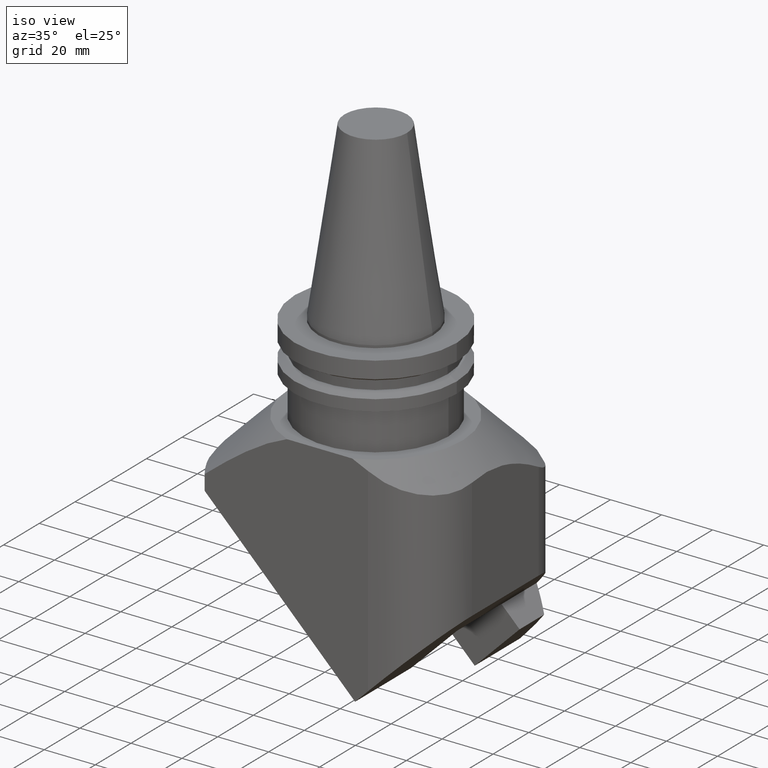
[diagram: clean part render]
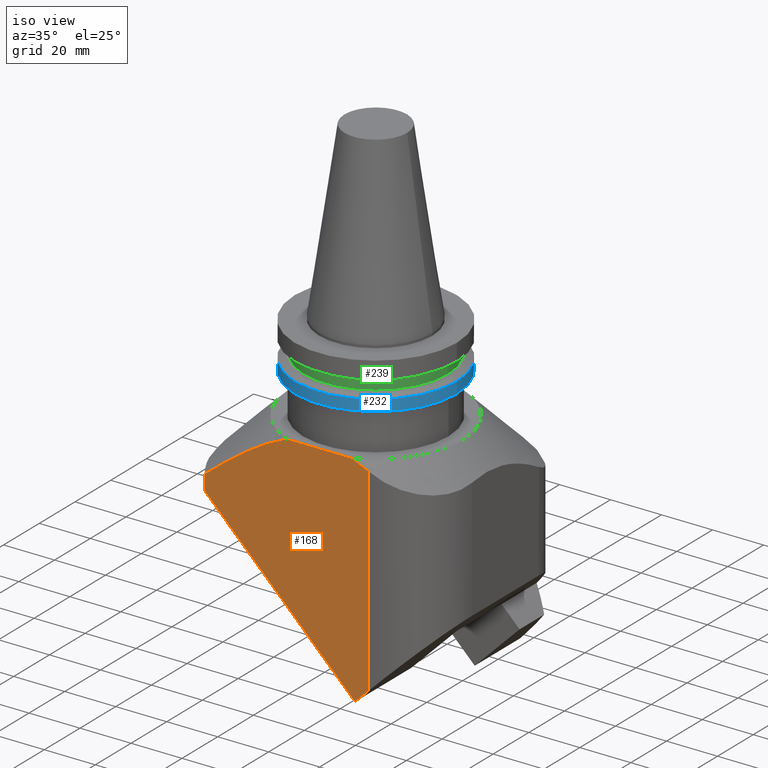
[diagram: same view with three faces highlighted in distinct colors, each labeled with its STEP entity id]
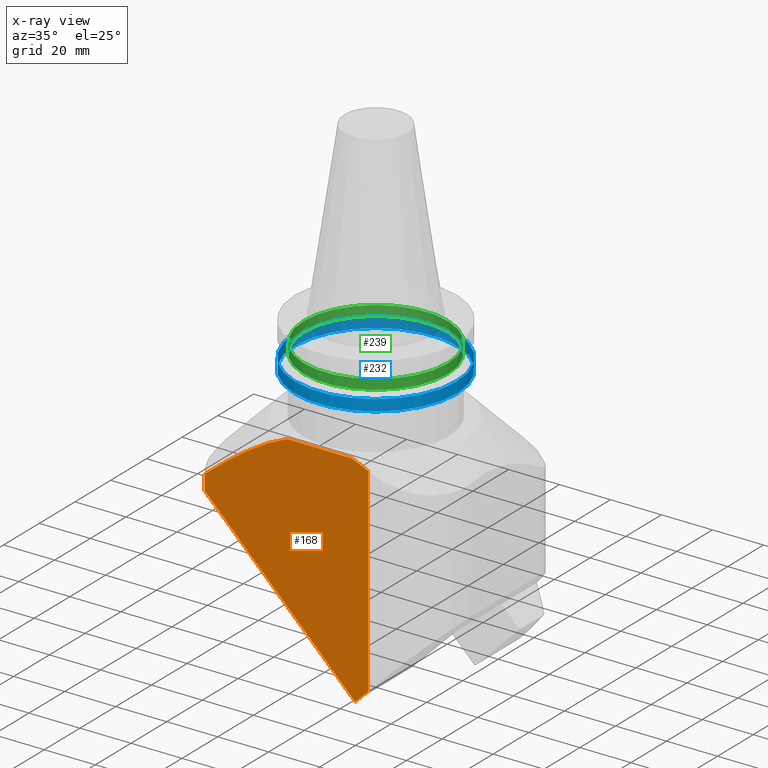
[diagram: x-ray of the same camera — body ghosted, the three highlighted faces saturated]
A machine part, iso view with three faces highlighted in distinct colors.
The next image is the same camera in x-ray (body ghosted, the three faces saturated) — at least one of them is partly hidden behind the body in this view.
Their STEP definitions:

[orange] entity #168 — the highlighted planar face has unit normal (0, 1, -0).
#160=EDGE_CURVE('Unnamed[1]',#409,#362,#410,.T.);
#162=EDGE_CURVE('Unnamed[1]',#412,#413,#414,.T.);
#168=ADVANCED_FACE('Unnamed[1]',(#421),#422,.F.);
#175=EDGE_CURVE('Unnamed[1]',#398,#413,#431,.T.);
#185=EDGE_CURVE('Unnamed[1]',#444,#412,#445,.T.);
#187=EDGE_CURVE('Unnamed[1]',#409,#447,#448,.T.);
#219=EDGE_CURVE('Unnamed[1]',#362,#444,#490,.T.);
#234=EDGE_CURVE('Unnamed[1]',#447,#398,#509,.T.);
#362=VERTEX_POINT('',#666);
#398=VERTEX_POINT('',#711);
#409=VERTEX_POINT('',#727);
#410=LINE('',#728,#729);
#412=VERTEX_POINT('',#732);
#413=VERTEX_POINT('',#733);
#414=(B_SPLINE_CURVE(2,(#735,#736,#737),.UNSPECIFIED.,.F.,.F.)B_SPLINE_CURVE_WITH_KNOTS((3,3),(0.0,38.6326090331154),.UNSPECIFIED.)RATIONAL_B_SPLINE_CURVE((1.0,1.07311621530074,1.0))BOUNDED_CURVE()REPRESENTATION_ITEM('')GEOMETRIC_REPRESENTATION_ITEM()CURVE());
#421=FACE_OUTER_BOUND('',#752,.T.);
#422=PLANE('',#753);
#431=LINE('',#765,#766);
#444=VERTEX_POINT('',#798);
#445=LINE('',#799,#800);
#447=VERTEX_POINT('',#803);
#448=LINE('',#804,#805);
#490=(B_SPLINE_CURVE(2,(#890,#891,#892),.UNSPECIFIED.,.F.,.F.)B_SPLINE_CURVE_WITH_KNOTS((3,3),(0.0,38.6326090331154),.UNSPECIFIED.)RATIONAL_B_SPLINE_CURVE((1.0,1.07311621530074,1.0))BOUNDED_CURVE()REPRESENTATION_ITEM('')GEOMETRIC_REPRESENTATION_ITEM()CURVE());
#509=LINE('',#925,#926);
#666=CARTESIAN_POINT('',(-45.0860288781339,-31.5000000000002,-55.9999999999993));
#711=CARTESIAN_POINT('',(19.0000000000007,-31.5,-115.857864376268));
#727=CARTESIAN_POINT('',(-45.0860288781346,-31.5000000000002,-61.9139711218646));
#728=CARTESIAN_POINT('',(-45.0860288781346,-31.5000000000002,-91.999999999999));
#729=VECTOR('',#1185,1.0);
#732=CARTESIAN_POINT('',(12.796483892066,-31.5000000000002,-34.9999999999984));
#733=CARTESIAN_POINT('',(19.0000000000007,-31.5,-37.7865464538328));
#735=CARTESIAN_POINT('',(12.796483892066,-31.5000000000002,-34.9999999999984));
#736=CARTESIAN_POINT('',(25.1318156845002,-31.5000000000002,-39.6426139583861));
#737=CARTESIAN_POINT('',(45.0860288781487,-31.5000000000003,-56.0000000000115));
#752=EDGE_LOOP('',(#1195,#1196,#1197,#1198,#1199,#1200,#1201));
#753=AXIS2_PLACEMENT_3D('',#1202,#1203,#1204);
#765=CARTESIAN_POINT('',(19.0000000000007,-31.5000000000001,-276.895414657619));
#766=VECTOR('',#1214,1.0);
#798=CARTESIAN_POINT('',(-12.796483892066,-31.5000000000002,-34.9999999999984));
#799=CARTESIAN_POINT('',(9.10349278046644,-31.5000000000002,-34.9999999999984));
#800=VECTOR('',#1219,1.0);
#803=CARTESIAN_POINT('',(13.9289321881349,-31.5000000000003,-120.928932188134));
#804=CARTESIAN_POINT('',(31.2131000541629,-31.5000000000003,-138.213100054162));
#805=VECTOR('',#1220,1.0);
#890=CARTESIAN_POINT('',(-45.0860288781488,-31.5000000000002,-56.0000000000116));
#891=CARTESIAN_POINT('',(-25.1318156845002,-31.5000000000002,-39.6426139583861));
#892=CARTESIAN_POINT('',(-12.796483892066,-31.5000000000002,-34.9999999999984));
#925=CARTESIAN_POINT('',(-27.4039353731503,-31.5000000000003,-162.261799749421));
#926=VECTOR('',#1291,1.0);
#1185=DIRECTION('',(-1.22464679914735E-016,2.22044604925031E-016,1.0));
#1195=ORIENTED_EDGE('',*,*,#234,.T.);
#1196=ORIENTED_EDGE('',*,*,#175,.T.);
#1197=ORIENTED_EDGE('',*,*,#162,.F.);
#1198=ORIENTED_EDGE('',*,*,#185,.F.);
#1199=ORIENTED_EDGE('',*,*,#219,.F.);
#1200=ORIENTED_EDGE('',*,*,#160,.F.);
#1201=ORIENTED_EDGE('',*,*,#187,.T.);
#1202=CARTESIAN_POINT('',(-13.0430144390666,-31.5000000000003,-276.895414657619));
#1203=DIRECTION('',(4.44089209850063E-016,1.0,-2.22044604925031E-016));
#1204=DIRECTION('',(-1.0,4.44089209850063E-016,-1.22464679914735E-016));
#1214=DIRECTION('',(-1.22464679914735E-016,2.22044604925031E-016,1.0));
#1219=DIRECTION('',(1.0,-4.44089209850063E-016,1.22464679914735E-016));
#1220=DIRECTION('',(0.707106781186546,-4.71027737605132E-016,-0.707106781186549));
#1291=DIRECTION('',(0.707106781186537,-1.57009245868371E-016,0.707106781186558));

[blue] entity #232 — the highlighted cylindrical surface (bore or boss wall) has radius 31.75 mm, axis along (0, -0, -1).
#111=EDGE_CURVE('Unnamed[1]',#328,#328,#329,.T.);
#137=EDGE_CURVE('Unnamed[1]',#373,#373,#374,.T.);
#232=ADVANCED_FACE('Unnamed[1]',(#505,#506),#507,.T.);
#328=VERTEX_POINT('',#619);
#329=CIRCLE('',#620,31.75);
#373=VERTEX_POINT('',#680);
#374=CIRCLE('',#681,31.75);
#505=FACE_BOUND('',#920,.T.);
#506=FACE_BOUND('',#921,.T.);
#507=CYLINDRICAL_SURFACE('',#922,31.75);
#619=CARTESIAN_POINT('',(31.75,-1.83297821365613E-014,-19.05));
#620=AXIS2_PLACEMENT_3D('',#1092,#1093,#1094);
#680=CARTESIAN_POINT('',(31.75,-1.73534890390847E-014,-14.65316677));
#681=AXIS2_PLACEMENT_3D('',#1137,#1138,#1139);
#920=EDGE_LOOP('',(#1286));
#921=EDGE_LOOP('',(#1287));
#922=AXIS2_PLACEMENT_3D('',#1288,#1289,#1290);
#1092=CARTESIAN_POINT('',(2.3329521523757E-015,-4.22994972382185E-015,-19.05));
#1093=DIRECTION('',(1.2246467991474E-016,-2.22044604925031E-016,-1.0));
#1094=DIRECTION('',(1.0,-4.44089209850063E-016,1.2246467991474E-016));
#1137=CARTESIAN_POINT('',(1.79449537822528E-015,-3.25365662634525E-015,-14.65316677));
#1138=DIRECTION('',(1.2246467991474E-016,-2.22044604925031E-016,-1.0));
#1139=DIRECTION('',(1.0,-4.44089209850063E-016,1.2246467991474E-016));
#1286=ORIENTED_EDGE('',*,*,#111,.F.);
#1287=ORIENTED_EDGE('',*,*,#137,.T.);
#1288=CARTESIAN_POINT('',(2.06372376530049E-015,-3.74180317508355E-015,-16.851583385));
#1289=DIRECTION('',(1.2246467991474E-016,-2.22044604925031E-016,-1.0));
#1290=DIRECTION('',(1.0,-4.44089209850063E-016,1.2246467991474E-016));

[green] entity #239 — the highlighted cylindrical surface (bore or boss wall) has radius 28.18 mm, axis along (0, -0, -1).
#183=EDGE_CURVE('Unnamed[1]',#441,#441,#442,.T.);
#194=EDGE_CURVE('Unnamed[1]',#457,#457,#458,.T.);
#239=ADVANCED_FACE('Unnamed[1]',(#515,#516),#517,.T.);
#441=VERTEX_POINT('',#794);
#442=CIRCLE('',#795,28.18);
#457=VERTEX_POINT('',#834);
#458=CIRCLE('',#835,28.18);
#515=FACE_BOUND('',#934,.T.);
#516=FACE_BOUND('',#935,.T.);
#517=CYLINDRICAL_SURFACE('',#936,28.18);
#794=CARTESIAN_POINT('',(28.18,-1.54098955817972E-014,-13.04));
#795=AXIS2_PLACEMENT_3D('',#1216,#1217,#1218);
#834=CARTESIAN_POINT('',(28.18,-1.45572442988851E-014,-9.2));
#835=AXIS2_PLACEMENT_3D('',#1227,#1228,#1229);
#934=EDGE_LOOP('',(#1296));
#935=EDGE_LOOP('',(#1297));
#936=AXIS2_PLACEMENT_3D('',#1298,#1299,#1300);
#1216=CARTESIAN_POINT('',(1.59693942608815E-015,-2.89546164822241E-015,-13.04));
#1217=DIRECTION('',(1.22464679914741E-016,-2.22044604925031E-016,-1.0));
#1218=DIRECTION('',(1.0,-4.44089209850063E-016,1.22464679914742E-016));
#1227=CARTESIAN_POINT('',(1.12667505521556E-015,-2.04281036531029E-015,-9.2));
#1228=DIRECTION('',(1.22464679914741E-016,-2.22044604925031E-016,-1.0));
#1229=DIRECTION('',(1.0,-4.44089209850063E-016,1.22464679914742E-016));
#1296=ORIENTED_EDGE('',*,*,#183,.F.);
#1297=ORIENTED_EDGE('',*,*,#194,.T.);
#1298=CARTESIAN_POINT('',(1.36180724065186E-015,-2.46913600676635E-015,-11.12));
#1299=DIRECTION('',(1.22464679914741E-016,-2.22044604925031E-016,-1.0));
#1300=DIRECTION('',(1.0,-4.44089209850063E-016,1.22464679914742E-016));